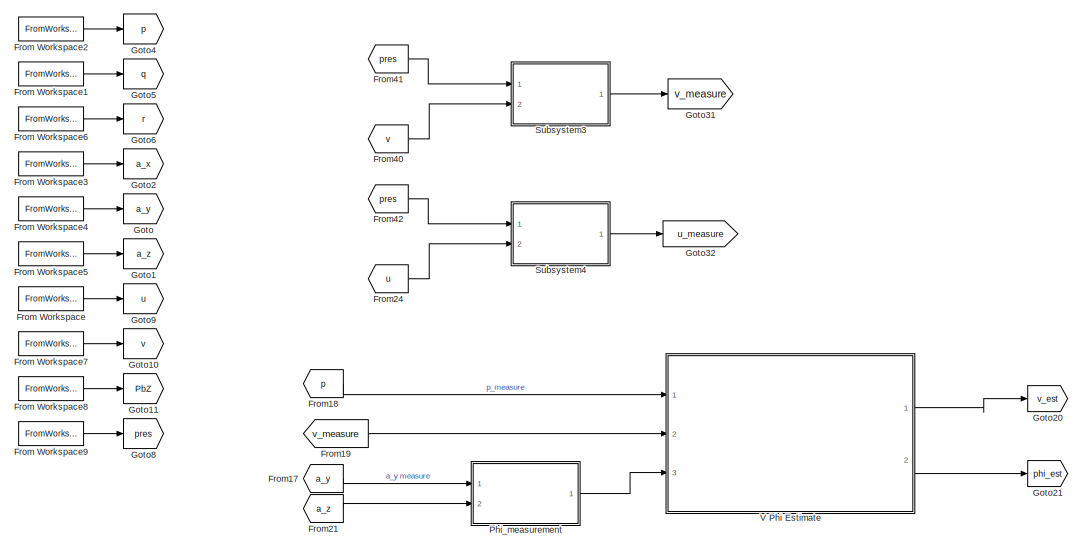
[diagram: root canvas - part 1/5, top left region]
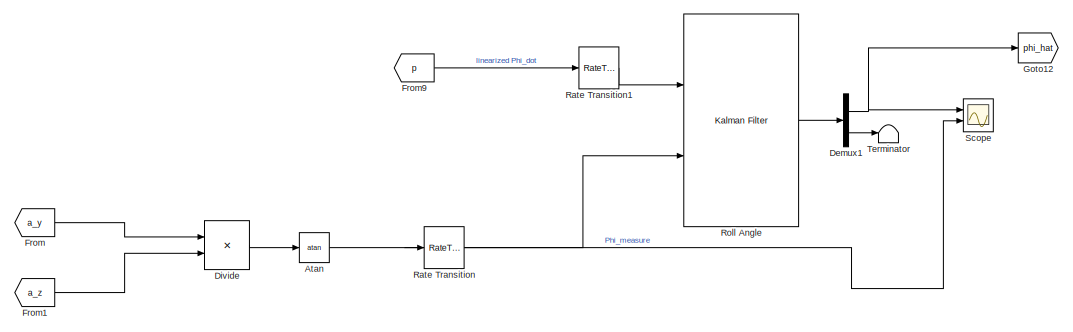
[diagram: root canvas - part 2/5, top right region]
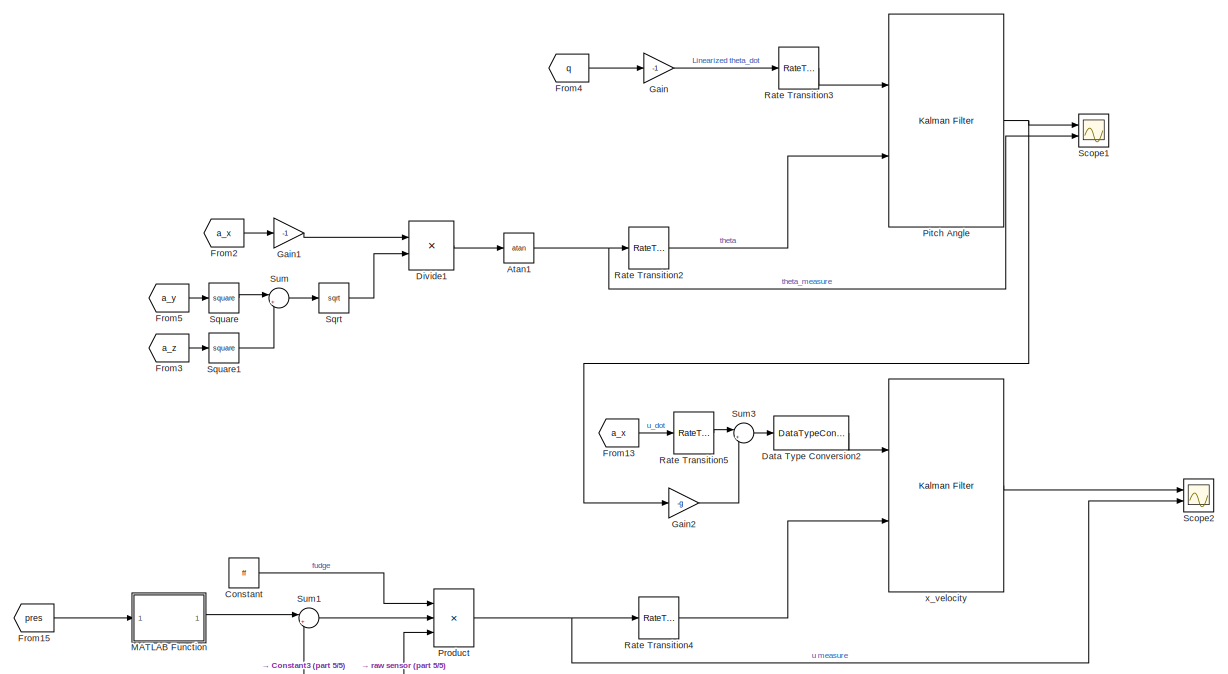
[diagram: root canvas - part 3/5, middle right region]
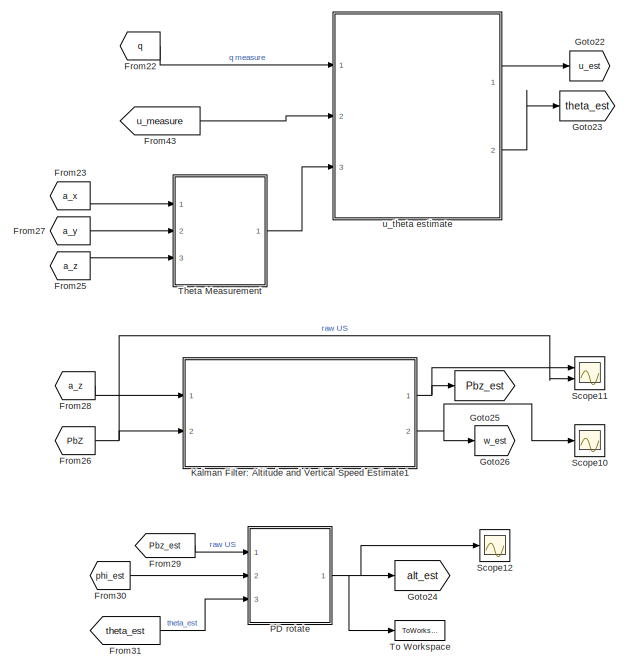
[diagram: root canvas - part 4/5, middle left region]
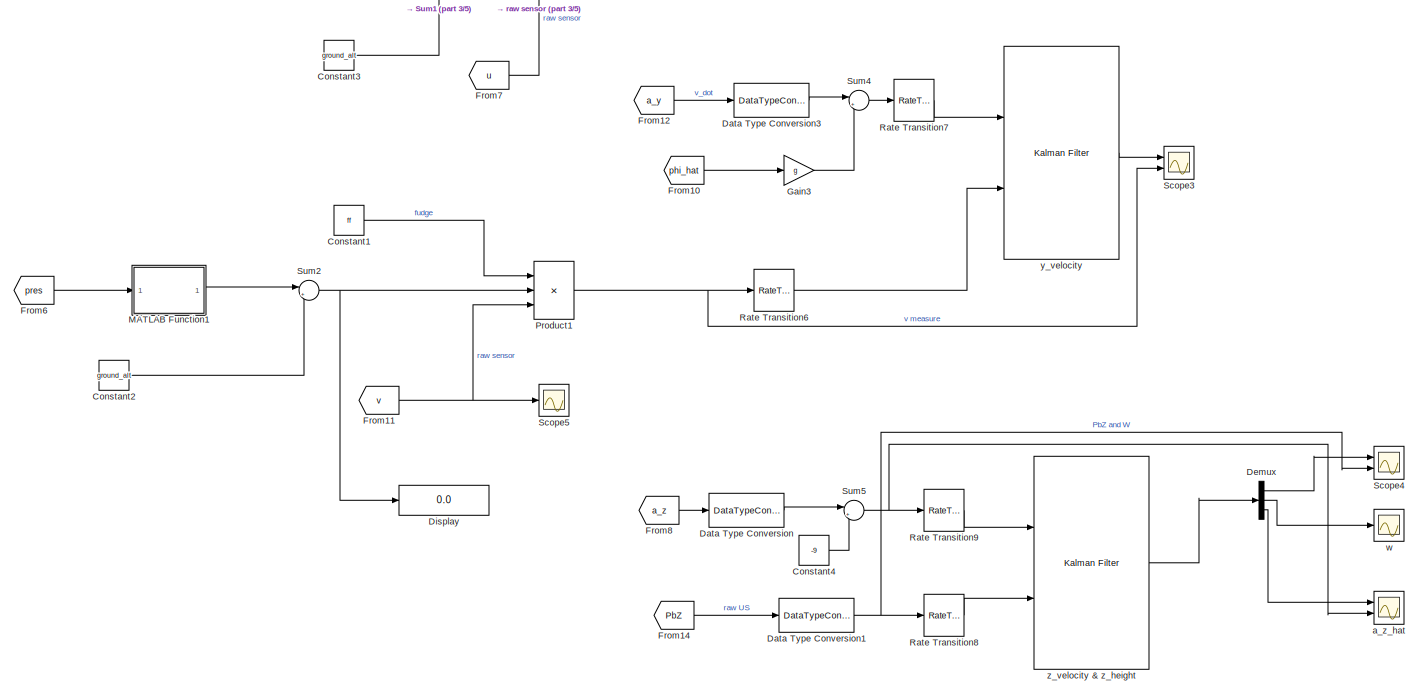
[diagram: root canvas - part 5/5, bottom right region]
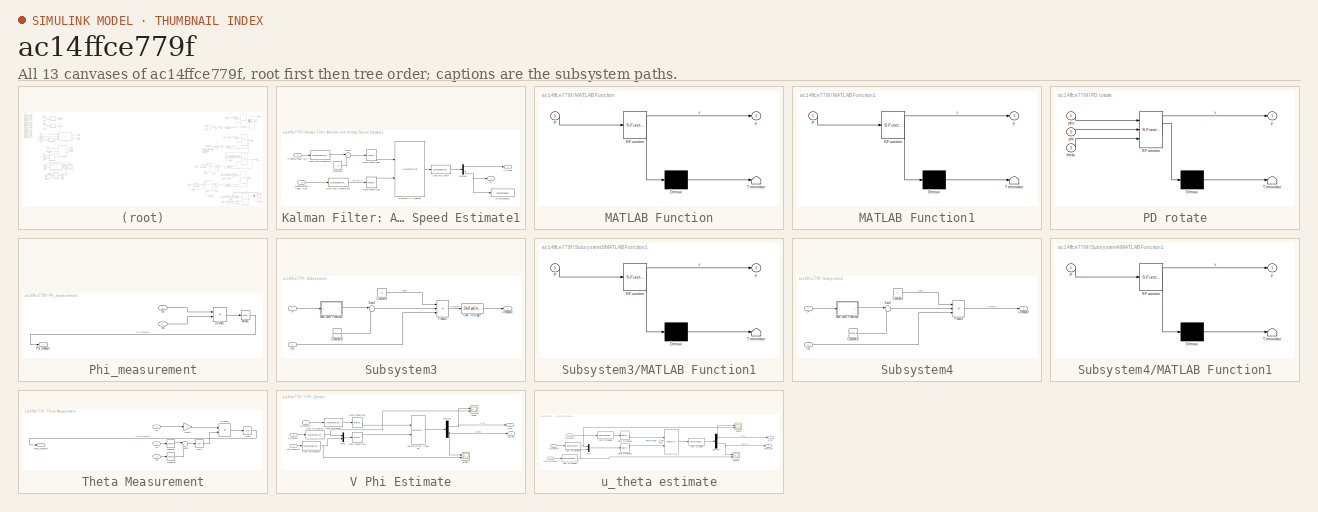
[diagram: thumbnail index - all 13 canvases of the model, root first then tree order]
MODEL slx_ac14ffce779f
KIND model
CONFIG AbsTol = auto
CONFIG EnableMultiTasking = off
CONFIG FixedStep = auto
CONFIG MaxStep = auto
CONFIG MinStep = auto
CONFIG RelTol = 1e-3
CONFIG SampleTimeConstraint = Unconstrained
CONFIG SolverName = VariableStepAuto
CONFIG StartTime = 0.0
CONFIG StopTime = 10.0
BLOCK [Trigonometry] Atan
  Commented = on
  Operator = atan
  Ports = [1, 1]
BLOCK [Trigonometry] Atan1
  Commented = on
  Operator = atan
  Ports = [1, 1]
BLOCK [Constant] Constant
  Commented = on
  Value = ff
BLOCK [Constant] Constant1
  Commented = on
  Value = ff
BLOCK [Constant] Constant2
  Commented = on
  Value = ground_alt
BLOCK [Constant] Constant3
  Commented = on
  Value = ground_alt
BLOCK [Constant] Constant4
  Commented = on
  Value = -9
BLOCK [DataTypeConversion] Data Type Conversion
  Commented = on
  OutDataTypeStr = double
  RndMeth = Floor
  SaturateOnIntegerOverflow = off
BLOCK [DataTypeConversion] Data Type Conversion1
  Commented = on
  OutDataTypeStr = double
  RndMeth = Floor
  SaturateOnIntegerOverflow = off
BLOCK [DataTypeConversion] Data Type Conversion2
  Commented = on
  OutDataTypeStr = double
  RndMeth = Floor
  SaturateOnIntegerOverflow = off
BLOCK [DataTypeConversion] Data Type Conversion3
  Commented = on
  OutDataTypeStr = double
  RndMeth = Floor
  SaturateOnIntegerOverflow = off
BLOCK [Demux] Demux
  Commented = on
  Outputs = 3
  Ports = [1, 3]
BLOCK [Demux] Demux1
  Commented = on
  Outputs = 2
  Ports = [1, 2]
BLOCK [Display] Display
  Commented = on
  Decimation = 1
  Ports = [1]
BLOCK [Product] Divide
  Commented = on
  Inputs = */
  Ports = [2, 1]
BLOCK [Product] Divide1
  Commented = on
  Inputs = */
  Ports = [2, 1]
BLOCK [From] From
  Commented = on
  GotoTag = a_y
BLOCK [FromWorkspace] From Workspace
  VariableName = u
BLOCK [FromWorkspace] From Workspace1
  VariableName = q
BLOCK [FromWorkspace] From Workspace2
  VariableName = p
BLOCK [FromWorkspace] From Workspace3
  VariableName = a_x
BLOCK [FromWorkspace] From Workspace4
  VariableName = a_y
BLOCK [FromWorkspace] From Workspace5
  VariableName = a_z
BLOCK [FromWorkspace] From Workspace6
  VariableName = r
BLOCK [FromWorkspace] From Workspace7
  VariableName = v
BLOCK [FromWorkspace] From Workspace8
  VariableName = PbZ
BLOCK [FromWorkspace] From Workspace9
  VariableName = pressure
BLOCK [From] From1
  Commented = on
  GotoTag = a_z
BLOCK [From] From10
  Commented = on
  GotoTag = phi_hat
BLOCK [From] From11
  Commented = on
  GotoTag = v
BLOCK [From] From12
  Commented = on
  GotoTag = a_y
BLOCK [From] From13
  Commented = on
  GotoTag = a_x
BLOCK [From] From14
  Commented = on
  GotoTag = PbZ
BLOCK [From] From15
  Commented = on
  GotoTag = pres
BLOCK [From] From17
  GotoTag = a_y
BLOCK [From] From18
  GotoTag = p
BLOCK [From] From19
  GotoTag = v_measure
BLOCK [From] From2
  Commented = on
  GotoTag = a_x
BLOCK [From] From21
  GotoTag = a_z
BLOCK [From] From22
  GotoTag = q
BLOCK [From] From23
  GotoTag = a_x
BLOCK [From] From24
  GotoTag = u
BLOCK [From] From25
  GotoTag = a_z
BLOCK [From] From26
  GotoTag = PbZ
BLOCK [From] From27
  GotoTag = a_y
BLOCK [From] From28
  GotoTag = a_z
BLOCK [From] From29
  GotoTag = Pbz_est
  TagVisibility = global
BLOCK [From] From3
  Commented = on
  GotoTag = a_z
BLOCK [From] From30
  GotoTag = phi_est
  TagVisibility = global
BLOCK [From] From31
  GotoTag = theta_est
  TagVisibility = global
BLOCK [From] From4
  Commented = on
  GotoTag = q
BLOCK [From] From40
  GotoTag = v
BLOCK [From] From41
  GotoTag = pres
BLOCK [From] From42
  GotoTag = pres
BLOCK [From] From43
  GotoTag = u_measure
BLOCK [From] From5
  Commented = on
  GotoTag = a_y
BLOCK [From] From6
  Commented = on
  GotoTag = pres
BLOCK [From] From7
  Commented = on
  GotoTag = u
BLOCK [From] From8
  Commented = on
  GotoTag = a_z
BLOCK [From] From9
  Commented = on
  GotoTag = p
BLOCK [Gain] Gain
  Commented = on
  Gain = -1
BLOCK [Gain] Gain1
  Commented = on
  Gain = -1
BLOCK [Gain] Gain2
  Commented = on
  Gain = -g
BLOCK [Gain] Gain3
  Commented = on
  Gain = g
BLOCK [Goto] Goto
  GotoTag = a_y
BLOCK [Goto] Goto1
  GotoTag = a_z
BLOCK [Goto] Goto10
  GotoTag = v
BLOCK [Goto] Goto11
  GotoTag = PbZ
BLOCK [Goto] Goto12
  Commented = on
  GotoTag = phi_hat
BLOCK [Goto] Goto2
  GotoTag = a_x
BLOCK [Goto] Goto20
  GotoTag = v_est
  TagVisibility = global
BLOCK [Goto] Goto21
  GotoTag = phi_est
  TagVisibility = global
BLOCK [Goto] Goto22
  GotoTag = u_est
  TagVisibility = global
BLOCK [Goto] Goto23
  GotoTag = theta_est
  TagVisibility = global
BLOCK [Goto] Goto24
  GotoTag = alt_est
  TagVisibility = global
BLOCK [Goto] Goto25
  GotoTag = Pbz_est
  TagVisibility = global
BLOCK [Goto] Goto26
  GotoTag = w_est
  TagVisibility = global
BLOCK [Goto] Goto31
  GotoTag = v_measure
BLOCK [Goto] Goto32
  GotoTag = u_measure
BLOCK [Goto] Goto4
  GotoTag = p
BLOCK [Goto] Goto5
  GotoTag = q
BLOCK [Goto] Goto6
  GotoTag = r
BLOCK [Goto] Goto8
  GotoTag = pres
BLOCK [Goto] Goto9
  GotoTag = u
BLOCK [SubSystem] Kalman Filter: Altitude and Vertical Speed Estimate1
  Ports = [2, 2]
  RequestExecContextInheritance = off
BLOCK [Outport] Kalman Filter: Altitude and Vertical Speed Estimate1/Altitude
BLOCK [DataTypeConversion] Kalman Filter: Altitude and Vertical Speed Estimate1/Cast To Single
  OutDataTypeStr = single
  RndMeth = Floor
  SaturateOnIntegerOverflow = off
BLOCK [Constant] Kalman Filter: Altitude and Vertical Speed Estimate1/Constant6
  Value = -9
BLOCK [DataTypeConversion] Kalman Filter: Altitude and Vertical Speed Estimate1/Data Type Conversion
  OutDataTypeStr = double
  RndMeth = Floor
  SaturateOnIntegerOverflow = off
BLOCK [DataTypeConversion] Kalman Filter: Altitude and Vertical Speed Estimate1/Data Type Conversion1
  OutDataTypeStr = double
  RndMeth = Floor
  SaturateOnIntegerOverflow = off
BLOCK [Demux] Kalman Filter: Altitude and Vertical Speed Estimate1/Demux1
  Outputs = 2
  Ports = [1, 2]
BLOCK [Inport] Kalman Filter: Altitude and Vertical Speed Estimate1/Measurement Input: PbZ
  Port = 2
BLOCK [Inport] Kalman Filter: Altitude and Vertical Speed Estimate1/Process Input: a_z 
BLOCK [RateTransition] Kalman Filter: Altitude and Vertical Speed Estimate1/Rate Transition8
  OutPortSampleTime = 1/200
BLOCK [RateTransition] Kalman Filter: Altitude and Vertical Speed Estimate1/Rate Transition9
  OutPortSampleTime = 1/200
BLOCK [Sum] Kalman Filter: Altitude and Vertical Speed Estimate1/Sum5
  Inputs = |+-
  Ports = [2, 1]
BLOCK [ToWorkspace] Kalman Filter: Altitude and Vertical Speed Estimate1/To Workspace1
  FixptAsFi = on
  MaxDataPoints = inf
  Ports = [1]
  SampleTime = -1
  SaveFormat = Structure With Time
  VariableName = w_est
BLOCK [Outport] Kalman Filter: Altitude and Vertical Speed Estimate1/W
  Port = 2
BLOCK [Reference] Kalman Filter: Altitude and Vertical Speed Estimate1/z_velocity & z_height  REF=ctrlSharedLib/Kalman Filter
  Ports = [2, 1]
  SourceBlock = ctrlSharedLib/Kalman Filter
  SourceProductBaseCode = CT,ID
  SourceType = ctrlKalmanFilter
BLOCK [SubSystem] MATLAB Function
  Commented = on
  ErrorFcn = Stateflow.Translate.translate
  PermitHierarchicalResolution = ExplicitOnly
  Ports = [1, 1]
  RequestExecContextInheritance = off
  SFBlockType = MATLAB Function
  TreatAsAtomicUnit = on
BLOCK [Demux] MATLAB Function/ Demux 
  Outputs = 1
  Ports = [1, 1]
BLOCK [S-Function] MATLAB Function/ SFunction 
  EnableBusSupport = on
  FunctionName = sf_sfun
  PortCounts = [1 2]
  Ports = [1, 2]
  SFcnIsStateOwnerBlock = off
  SFunctionDeploymentMode = off
  Tag = Stateflow S-Function 2
BLOCK [Terminator] MATLAB Function/ Terminator 
BLOCK [Inport] MATLAB Function/P
BLOCK [Outport] MATLAB Function/y
BLOCK [SubSystem] MATLAB Function1
  Commented = on
  ErrorFcn = Stateflow.Translate.translate
  PermitHierarchicalResolution = ExplicitOnly
  Ports = [1, 1]
  RequestExecContextInheritance = off
  SFBlockType = MATLAB Function
  TreatAsAtomicUnit = on
BLOCK [Demux] MATLAB Function1/ Demux 
  Outputs = 1
  Ports = [1, 1]
BLOCK [S-Function] MATLAB Function1/ SFunction 
  EnableBusSupport = on
  FunctionName = sf_sfun
  PortCounts = [1 2]
  Ports = [1, 2]
  SFcnIsStateOwnerBlock = off
  SFunctionDeploymentMode = off
  Tag = Stateflow S-Function 1
BLOCK [Terminator] MATLAB Function1/ Terminator 
BLOCK [Inport] MATLAB Function1/P
BLOCK [Outport] MATLAB Function1/y
BLOCK [SubSystem] PD rotate
  ErrorFcn = Stateflow.Translate.translate
  PermitHierarchicalResolution = ExplicitOnly
  Ports = [3, 1]
  RequestExecContextInheritance = off
  SFBlockType = MATLAB Function
  TreatAsAtomicUnit = on
BLOCK [Demux] PD rotate/ Demux 
  Outputs = 1
  Ports = [1, 1]
BLOCK [S-Function] PD rotate/ SFunction 
  EnableBusSupport = on
  FunctionName = sf_sfun
  PortCounts = [3 2]
  Ports = [3, 2]
  SFcnIsStateOwnerBlock = off
  SFunctionDeploymentMode = off
  Tag = Stateflow S-Function 3
BLOCK [Terminator] PD rotate/ Terminator 
BLOCK [Inport] PD rotate/pbz
BLOCK [Inport] PD rotate/phi
  Port = 2
BLOCK [Inport] PD rotate/theta
  Port = 3
BLOCK [Outport] PD rotate/y
BLOCK [SubSystem] Phi_measurement
  Ports = [2, 1]
  RequestExecContextInheritance = off
BLOCK [Trigonometry] Phi_measurement/Atan2
  Operator = atan
  Ports = [1, 1]
BLOCK [Product] Phi_measurement/Divide2
  Inputs = */
  Ports = [2, 1]
BLOCK [Inport] Phi_measurement/In1
BLOCK [Inport] Phi_measurement/In2
  Port = 2
BLOCK [Outport] Phi_measurement/Phi_measure
BLOCK [Reference] Pitch Angle  REF=ctrlSharedLib/Kalman Filter
  Commented = on
  Ports = [2, 1]
  SourceBlock = ctrlSharedLib/Kalman Filter
  SourceProductBaseCode = CT,ID
  SourceType = ctrlKalmanFilter
BLOCK [Product] Product
  Commented = on
  Inputs = 3
  Ports = [3, 1]
BLOCK [Product] Product1
  Commented = on
  Inputs = 3
  Ports = [3, 1]
BLOCK [RateTransition] Rate Transition
  Commented = on
  OutPortSampleTime = 1/200
BLOCK [RateTransition] Rate Transition1
  Commented = on
  OutPortSampleTime = 1/200
BLOCK [RateTransition] Rate Transition2
  Commented = on
  OutPortSampleTime = 1/200
BLOCK [RateTransition] Rate Transition3
  Commented = on
  OutPortSampleTime = 1/200
BLOCK [RateTransition] Rate Transition4
  Commented = on
  OutPortSampleTime = 1/200
BLOCK [RateTransition] Rate Transition5
  Commented = on
  OutPortSampleTime = 1/200
BLOCK [RateTransition] Rate Transition6
  Commented = on
  OutPortSampleTime = 1/200
BLOCK [RateTransition] Rate Transition7
  Commented = on
  OutPortSampleTime = 1/200
BLOCK [RateTransition] Rate Transition8
  Commented = on
  OutPortSampleTime = 1/200
BLOCK [RateTransition] Rate Transition9
  Commented = on
  OutPortSampleTime = 1/200
BLOCK [Reference] Roll Angle  REF=ctrlSharedLib/Kalman Filter
  Commented = on
  Ports = [2, 1]
  SourceBlock = ctrlSharedLib/Kalman Filter
  SourceProductBaseCode = CT,ID
  SourceType = ctrlKalmanFilter
BLOCK [Scope] Scope
  Commented = on
  Floating = off
  NumInputPorts = 2
  Ports = [2]
  ScopeSpecificationString = Simulink.scopes.TimeScopeBlockCfg('CurrentConfiguration', extmgr.ConfigurationSet(extmgr.Configuration('Core','General UI',true),extmgr.Configuration('Core','Source UI',true),extmgr.Configuration('Sources','WiredSimulink',true),extmgr.Configuration('Visuals','Time Domain',true,'SerializedDisplays',{struct('MinYLimReal','-0.88129','MaxYLimReal','1.18508','YLabelReal','','MinYLimMag','0.00000','MaxY...<+1433ch>
BLOCK [Scope] Scope1
  Commented = on
  Floating = off
  NumInputPorts = 2
  Ports = [2]
  ScopeSpecificationString = Simulink.scopes.TimeScopeBlockCfg('CurrentConfiguration', extmgr.ConfigurationSet(extmgr.Configuration('Core','General UI',true),extmgr.Configuration('Core','Source UI',true),extmgr.Configuration('Sources','WiredSimulink',true,'DataLoggingVariableName','ScopeData1'),extmgr.Configuration('Visuals','Time Domain',true,'SerializedDisplays',{struct('MinYLimReal','-0.82118','MaxYLimReal','1.01964','YLab...<+1506ch>
BLOCK [Scope] Scope10
  Floating = off
  NumInputPorts = 1
  Ports = [1]
  ScopeSpecificationString = Simulink.scopes.TimeScopeBlockCfg('CurrentConfiguration', extmgr.ConfigurationSet(extmgr.Configuration('Core','General UI',true),extmgr.Configuration('Core','Source UI',true),extmgr.Configuration('Sources','WiredSimulink',true,'DataLoggingVariableName','ScopeData5'),extmgr.Configuration('Visuals','Time Domain',true,'SerializedDisplays',{struct('MinYLimReal','-0.23997','MaxYLimReal','0.71746','YLab...<+1440ch>
BLOCK [Scope] Scope11
  Floating = off
  NumInputPorts = 2
  Ports = [2]
  ScopeSpecificationString = Simulink.scopes.TimeScopeBlockCfg('CurrentConfiguration', extmgr.ConfigurationSet(extmgr.Configuration('Core','General UI',true),extmgr.Configuration('Core','Source UI',true),extmgr.Configuration('Sources','WiredSimulink',true,'DataLoggingVariableName','ScopeData6'),extmgr.Configuration('Visuals','Time Domain',true,'SerializedDisplays',{struct('MinYLimReal','0.08693','MaxYLimReal','0.86697','YLabe...<+1420ch>
BLOCK [Scope] Scope12
  Floating = off
  NumInputPorts = 1
  Ports = [1]
  ScopeSpecificationString = Simulink.scopes.TimeScopeBlockCfg('CurrentConfiguration', extmgr.ConfigurationSet(extmgr.Configuration('Core','General UI',true),extmgr.Configuration('Core','Source UI',true),extmgr.Configuration('Sources','WiredSimulink',true,'DataLoggingVariableName','ScopeData7'),extmgr.Configuration('Visuals','Time Domain',true,'SerializedDisplays',{struct('MinYLimReal','-0.04077','MaxYLimReal','0.01858','YLab...<+1368ch>
BLOCK [Scope] Scope2
  Commented = on
  Floating = off
  NumInputPorts = 2
  Ports = [2]
  ScopeSpecificationString = Simulink.scopes.TimeScopeBlockCfg('CurrentConfiguration', extmgr.ConfigurationSet(extmgr.Configuration('Core','General UI',true),extmgr.Configuration('Core','Source UI',true),extmgr.Configuration('Sources','WiredSimulink',true,'DataLoggingVariableName','ScopeData2'),extmgr.Configuration('Visuals','Time Domain',true,'SerializedDisplays',{struct('MinYLimReal','-78.97711','MaxYLimReal','99.67075','YL...<+1500ch>
BLOCK [Scope] Scope3
  Commented = on
  Floating = off
  NumInputPorts = 2
  Ports = [2]
  ScopeSpecificationString = Simulink.scopes.TimeScopeBlockCfg('CurrentConfiguration', extmgr.ConfigurationSet(extmgr.Configuration('Core','General UI',true),extmgr.Configuration('Core','Source UI',true),extmgr.Configuration('Sources','WiredSimulink',true,'DataLoggingVariableName','ScopeData3'),extmgr.Configuration('Visuals','Time Domain',true,'SerializedDisplays',{struct('MinYLimReal','-122.02139','MaxYLimReal','115.8093','Y...<+1506ch>
BLOCK [Scope] Scope4
  Commented = on
  Floating = off
  NumInputPorts = 2
  Ports = [2]
  ScopeSpecificationString = Simulink.scopes.TimeScopeBlockCfg('CurrentConfiguration', extmgr.ConfigurationSet(extmgr.Configuration('Core','General UI',true),extmgr.Configuration('Core','Source UI',true),extmgr.Configuration('Sources','WiredSimulink',true,'DataLoggingVariableName','ScopeData2'),extmgr.Configuration('Visuals','Time Domain',true,'SerializedDisplays',{struct('MinYLimReal','-0.02857','MaxYLimReal','1.11252','YLab...<+1473ch>
BLOCK [Scope] Scope5
  Commented = on
  Floating = off
  NumInputPorts = 1
  Ports = [1]
  ScopeSpecificationString = Simulink.scopes.TimeScopeBlockCfg('CurrentConfiguration', extmgr.ConfigurationSet(extmgr.Configuration('Core','General UI',true),extmgr.Configuration('Core','Source UI',true),extmgr.Configuration('Sources','WiredSimulink',true,'DataLoggingVariableName','ScopeData1'),extmgr.Configuration('Visuals','Time Domain',true,'SerializedDisplays',{struct('MinYLimReal','-0.40564','MaxYLimReal','0.42316','YLab...<+1398ch>
BLOCK [Sqrt] Sqrt
  Commented = on
BLOCK [Math] Square
  Commented = on
  Operator = square
  Ports = [1, 1]
BLOCK [Math] Square1
  Commented = on
  Operator = square
  Ports = [1, 1]
BLOCK [SubSystem] Subsystem3
  Ports = [2, 1]
  RequestExecContextInheritance = off
BLOCK [DataTypeConversion] Subsystem3/Cast To Single
  OutDataTypeStr = single
  RndMeth = Floor
  SaturateOnIntegerOverflow = off
BLOCK [Constant] Subsystem3/Constant10
  Value = ground_alt
BLOCK [Constant] Subsystem3/Constant9
  Value = ff
BLOCK [Inport] Subsystem3/In2
  Port = 2
BLOCK [SubSystem] Subsystem3/MATLAB Function1
  ErrorFcn = Stateflow.Translate.translate
  PermitHierarchicalResolution = ExplicitOnly
  Ports = [1, 1]
  RequestExecContextInheritance = off
  SFBlockType = MATLAB Function
  TreatAsAtomicUnit = on
BLOCK [Demux] Subsystem3/MATLAB Function1/ Demux 
  Outputs = 1
  Ports = [1, 1]
BLOCK [S-Function] Subsystem3/MATLAB Function1/ SFunction 
  EnableBusSupport = on
  FunctionName = sf_sfun
  PortCounts = [1 2]
  Ports = [1, 2]
  SFcnIsStateOwnerBlock = off
  SFunctionDeploymentMode = off
  Tag = Stateflow S-Function 4
BLOCK [Terminator] Subsystem3/MATLAB Function1/ Terminator 
BLOCK [Inport] Subsystem3/MATLAB Function1/P
BLOCK [Outport] Subsystem3/MATLAB Function1/y
BLOCK [Inport] Subsystem3/P
BLOCK [Product] Subsystem3/Product1
  Inputs = 3
  Ports = [3, 1]
BLOCK [Sum] Subsystem3/Sum2
  Inputs = |+-
  Ports = [2, 1]
BLOCK [Outport] Subsystem3/v measure
BLOCK [SubSystem] Subsystem4
  Ports = [2, 1]
  RequestExecContextInheritance = off
BLOCK [Constant] Subsystem4/Constant10
  Value = ground_alt
BLOCK [Constant] Subsystem4/Constant9
  Value = ff
BLOCK [Inport] Subsystem4/In2
  Port = 2
BLOCK [SubSystem] Subsystem4/MATLAB Function1
  ErrorFcn = Stateflow.Translate.translate
  PermitHierarchicalResolution = ExplicitOnly
  Ports = [1, 1]
  RequestExecContextInheritance = off
  SFBlockType = MATLAB Function
  TreatAsAtomicUnit = on
BLOCK [Demux] Subsystem4/MATLAB Function1/ Demux 
  Outputs = 1
  Ports = [1, 1]
BLOCK [S-Function] Subsystem4/MATLAB Function1/ SFunction 
  EnableBusSupport = on
  FunctionName = sf_sfun
  PortCounts = [1 2]
  Ports = [1, 2]
  SFcnIsStateOwnerBlock = off
  SFunctionDeploymentMode = off
  Tag = Stateflow S-Function 5
BLOCK [Terminator] Subsystem4/MATLAB Function1/ Terminator 
BLOCK [Inport] Subsystem4/MATLAB Function1/P
BLOCK [Outport] Subsystem4/MATLAB Function1/y
BLOCK [Inport] Subsystem4/P
BLOCK [Product] Subsystem4/Product1
  Inputs = 3
  Ports = [3, 1]
BLOCK [Sum] Subsystem4/Sum2
  Inputs = |+-
  Ports = [2, 1]
BLOCK [Outport] Subsystem4/u measure
BLOCK [Sum] Sum
  Commented = on
  Inputs = |++
  Ports = [2, 1]
BLOCK [Sum] Sum1
  Commented = on
  Inputs = |+-
  Ports = [2, 1]
BLOCK [Sum] Sum2
  Commented = on
  Inputs = |+-
  Ports = [2, 1]
BLOCK [Sum] Sum3
  Commented = on
  Inputs = |++
  Ports = [2, 1]
BLOCK [Sum] Sum4
  Commented = on
  Inputs = |++
  Ports = [2, 1]
BLOCK [Sum] Sum5
  Commented = on
  Inputs = |+-
  Ports = [2, 1]
BLOCK [Terminator] Terminator
  Commented = on
BLOCK [SubSystem] Theta Measurement
  Ports = [3, 1]
  RequestExecContextInheritance = off
BLOCK [Trigonometry] Theta Measurement/Atan3
  Operator = atan
  Ports = [1, 1]
BLOCK [Product] Theta Measurement/Divide3
  Inputs = */
  Ports = [2, 1]
BLOCK [Gain] Theta Measurement/Gain4
  Gain = -1
BLOCK [Inport] Theta Measurement/In1
BLOCK [Inport] Theta Measurement/In2
  Port = 2
BLOCK [Inport] Theta Measurement/In3
  Port = 3
BLOCK [Sqrt] Theta Measurement/Sqrt1
BLOCK [Math] Theta Measurement/Square2
  Operator = square
  Ports = [1, 1]
BLOCK [Math] Theta Measurement/Square3
  Operator = square
  Ports = [1, 1]
BLOCK [Sum] Theta Measurement/Sum6
  Inputs = |++
  Ports = [2, 1]
BLOCK [Outport] Theta Measurement/theta_measure
BLOCK [ToWorkspace] To Workspace
  FixptAsFi = on
  MaxDataPoints = inf
  Ports = [1]
  SampleTime = -1
  SaveFormat = Structure With Time
  VariableName = alt_est
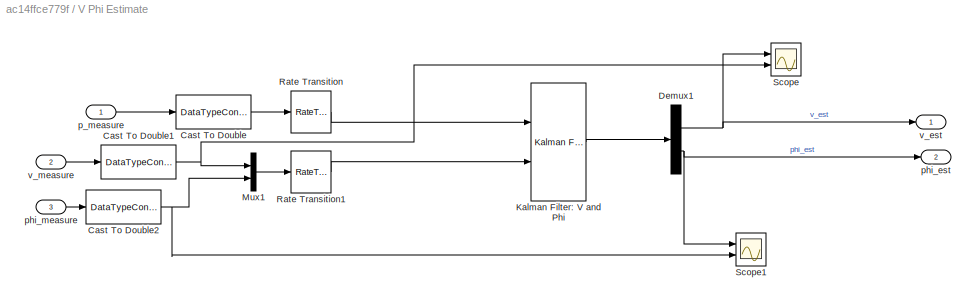
BLOCK [SubSystem] V Phi Estimate
  Ports = [3, 2]
  RequestExecContextInheritance = off
BLOCK [DataTypeConversion] V Phi Estimate/Cast To Double
  OutDataTypeStr = double
  RndMeth = Floor
  SaturateOnIntegerOverflow = off
BLOCK [DataTypeConversion] V Phi Estimate/Cast To Double1
  OutDataTypeStr = double
  RndMeth = Floor
  SaturateOnIntegerOverflow = off
BLOCK [DataTypeConversion] V Phi Estimate/Cast To Double2
  OutDataTypeStr = double
  RndMeth = Floor
  SaturateOnIntegerOverflow = off
BLOCK [Demux] V Phi Estimate/Demux1
  Outputs = 2
  Ports = [1, 2]
BLOCK [Reference] V Phi Estimate/Kalman Filter: V and Phi  REF=ctrlSharedLib/Kalman Filter
  Ports = [2, 1]
  SourceBlock = ctrlSharedLib/Kalman Filter
  SourceProductBaseCode = CT,ID
  SourceType = ctrlKalmanFilter
BLOCK [Mux] V Phi Estimate/Mux1
  DisplayOption = bar
  Inputs = 2
  Ports = [2, 1]
BLOCK [RateTransition] V Phi Estimate/Rate Transition
  OutPortSampleTime = 1/200
BLOCK [RateTransition] V Phi Estimate/Rate Transition1
  OutPortSampleTime = 1/200
BLOCK [Scope] V Phi Estimate/Scope
  Floating = off
  NumInputPorts = 2
  Ports = [2]
  ScopeSpecificationString = Simulink.scopes.TimeScopeBlockCfg('CurrentConfiguration', extmgr.ConfigurationSet(extmgr.Configuration('Core','General UI',true),extmgr.Configuration('Core','Source UI',true),extmgr.Configuration('Sources','WiredSimulink',true,'DataLoggingVariableName','ScopeData1'),extmgr.Configuration('Visuals','Time Domain',true,'SerializedDisplays',{struct('MinYLimReal','-0.21192','MaxYLimReal','0.19018','YLab...<+1403ch>
BLOCK [Scope] V Phi Estimate/Scope1
  Floating = off
  NumInputPorts = 2
  Ports = [2]
  ScopeSpecificationString = Simulink.scopes.TimeScopeBlockCfg('CurrentConfiguration', extmgr.ConfigurationSet(extmgr.Configuration('Core','General UI',true),extmgr.Configuration('Core','Source UI',true),extmgr.Configuration('Sources','WiredSimulink',true,'DataLoggingVariableName','ScopeData2'),extmgr.Configuration('Visuals','Time Domain',true,'SerializedDisplays',{struct('MinYLimReal','-0.09021','MaxYLimReal','0.1464','YLabe...<+1448ch>
BLOCK [Inport] V Phi Estimate/p_measure
BLOCK [Outport] V Phi Estimate/phi_est
  Port = 2
BLOCK [Inport] V Phi Estimate/phi_measure
  Port = 3
BLOCK [Outport] V Phi Estimate/v_est
BLOCK [Inport] V Phi Estimate/v_measure
  Port = 2
BLOCK [Scope] a_z_hat
  Commented = on
  Floating = off
  NumInputPorts = 2
  Ports = [2]
  ScopeSpecificationString = Simulink.scopes.TimeScopeBlockCfg('CurrentConfiguration', extmgr.ConfigurationSet(extmgr.Configuration('Core','General UI',true),extmgr.Configuration('Core','Source UI',true),extmgr.Configuration('Sources','WiredSimulink',true,'DataLoggingVariableName','ScopeData1'),extmgr.Configuration('Visuals','Time Domain',true,'SerializedDisplays',{struct('MinYLimReal','-3.47399','MaxYLimReal','4.62763','YLab...<+1400ch>
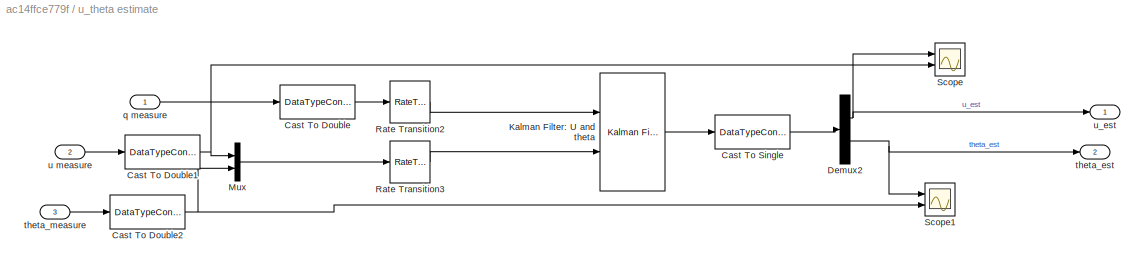
BLOCK [SubSystem] u_theta estimate
  Ports = [3, 2]
  RequestExecContextInheritance = off
BLOCK [DataTypeConversion] u_theta estimate/Cast To Double
  OutDataTypeStr = double
  RndMeth = Floor
  SaturateOnIntegerOverflow = off
BLOCK [DataTypeConversion] u_theta estimate/Cast To Double1
  OutDataTypeStr = double
  RndMeth = Floor
  SaturateOnIntegerOverflow = off
BLOCK [DataTypeConversion] u_theta estimate/Cast To Double2
  OutDataTypeStr = double
  RndMeth = Floor
  SaturateOnIntegerOverflow = off
BLOCK [DataTypeConversion] u_theta estimate/Cast To Single
  OutDataTypeStr = single
  RndMeth = Floor
  SaturateOnIntegerOverflow = off
BLOCK [Demux] u_theta estimate/Demux2
  Outputs = 2
  Ports = [1, 2]
BLOCK [Reference] u_theta estimate/Kalman Filter: U and theta  REF=ctrlSharedLib/Kalman Filter
  Ports = [2, 1]
  SourceBlock = ctrlSharedLib/Kalman Filter
  SourceProductBaseCode = CT,ID
  SourceType = ctrlKalmanFilter
BLOCK [Mux] u_theta estimate/Mux
  DisplayOption = bar
  Inputs = 2
  Ports = [2, 1]
BLOCK [RateTransition] u_theta estimate/Rate Transition2
  OutPortSampleTime = 1/200
BLOCK [RateTransition] u_theta estimate/Rate Transition3
  OutPortSampleTime = 1/200
BLOCK [Scope] u_theta estimate/Scope
  Floating = off
  NumInputPorts = 2
  Ports = [2]
  ScopeSpecificationString = Simulink.scopes.TimeScopeBlockCfg('CurrentConfiguration', extmgr.ConfigurationSet(extmgr.Configuration('Core','General UI',true),extmgr.Configuration('Core','Source UI',true),extmgr.Configuration('Sources','WiredSimulink',true,'DataLoggingVariableName','ScopeData3'),extmgr.Configuration('Visuals','Time Domain',true,'SerializedDisplays',{struct('MinYLimReal','-4.83483','MaxYLimReal','0.72177','YLab...<+1409ch>
BLOCK [Scope] u_theta estimate/Scope1
  Floating = off
  NumInputPorts = 2
  Ports = [2]
  ScopeSpecificationString = Simulink.scopes.TimeScopeBlockCfg('CurrentConfiguration', extmgr.ConfigurationSet(extmgr.Configuration('Core','General UI',true),extmgr.Configuration('Core','Source UI',true),extmgr.Configuration('Sources','WiredSimulink',true,'DataLoggingVariableName','ScopeData4'),extmgr.Configuration('Visuals','Time Domain',true,'SerializedDisplays',{struct('MinYLimReal','-0.03346','MaxYLimReal','0.07095','YLab...<+1430ch>
BLOCK [Inport] u_theta estimate/q measure
BLOCK [Outport] u_theta estimate/theta_est
  Port = 2
BLOCK [Inport] u_theta estimate/theta_measure
  Port = 3
BLOCK [Inport] u_theta estimate/u measure
  Port = 2
BLOCK [Outport] u_theta estimate/u_est
BLOCK [Scope] w
  Commented = on
  Floating = off
  NumInputPorts = 1
  Ports = [1]
  ScopeSpecificationString = Simulink.scopes.TimeScopeBlockCfg('CurrentConfiguration', extmgr.ConfigurationSet(extmgr.Configuration('Core','General UI',true),extmgr.Configuration('Core','Source UI',true),extmgr.Configuration('Sources','WiredSimulink',true,'DataLoggingVariableName','ScopeData1'),extmgr.Configuration('Visuals','Time Domain',true,'SerializedDisplays',{struct('MinYLimReal','-0.51826','MaxYLimReal','0.93623','YLab...<+1395ch>
BLOCK [Reference] x_velocity  REF=ctrlSharedLib/Kalman Filter
  Commented = on
  Ports = [2, 1]
  SourceBlock = ctrlSharedLib/Kalman Filter
  SourceProductBaseCode = CT,ID
  SourceType = ctrlKalmanFilter
BLOCK [Reference] y_velocity  REF=ctrlSharedLib/Kalman Filter
  Commented = on
  Ports = [2, 1]
  SourceBlock = ctrlSharedLib/Kalman Filter
  SourceProductBaseCode = CT,ID
  SourceType = ctrlKalmanFilter
BLOCK [Reference] z_velocity & z_height  REF=ctrlSharedLib/Kalman Filter
  Commented = on
  Ports = [2, 1]
  SourceBlock = ctrlSharedLib/Kalman Filter
  SourceProductBaseCode = CT,ID
  SourceType = ctrlKalmanFilter
NET Atan1:1 -> Rate Transition2:1, Scope1:2
NET Atan:1 -> Rate Transition:1, Scope:2
LINE Constant1:1 -> Product1:1
LINE Constant2:1 -> Sum2:2
LINE Constant3:1 -> Sum1:2
LINE Constant4:1 -> Sum5:2
LINE Constant:1 -> Product:1
NET Data Type Conversion1:1 -> Rate Transition8:1, Scope4:2
LINE Data Type Conversion2:1 -> x_velocity:1
LINE Data Type Conversion3:1 -> Sum4:1
LINE Data Type Conversion:1 -> Sum5:1
NET Demux1:1 -> Goto12:1, Scope:1
LINE Demux1:2 -> Terminator:1
LINE Demux:1 -> Scope4:1
LINE Demux:2 -> w:1
LINE Demux:3 -> a_z_hat:1
LINE Divide1:1 -> Atan1:1
LINE Divide:1 -> Atan:1
LINE From Workspace1:1 -> Goto5:1
LINE From Workspace2:1 -> Goto4:1
LINE From Workspace3:1 -> Goto2:1
LINE From Workspace4:1 -> Goto:1
LINE From Workspace5:1 -> Goto1:1
LINE From Workspace6:1 -> Goto6:1
LINE From Workspace7:1 -> Goto10:1
LINE From Workspace8:1 -> Goto11:1
LINE From Workspace9:1 -> Goto8:1
LINE From Workspace:1 -> Goto9:1
LINE From10:1 -> Gain3:1
NET From11:1 -> Product1:3, Scope5:1
LINE From12:1 -> Data Type Conversion3:1
LINE From13:1 -> Rate Transition5:1
LINE From14:1 -> Data Type Conversion1:1
LINE From15:1 -> MATLAB Function:1
LINE From17:1 -> Phi_measurement:1
LINE From18:1 -> V Phi Estimate:1
LINE From19:1 -> V Phi Estimate:2
LINE From1:1 -> Divide:2
LINE From21:1 -> Phi_measurement:2
LINE From22:1 -> u_theta estimate:1
LINE From23:1 -> Theta Measurement:1
LINE From24:1 -> Subsystem4:2
LINE From25:1 -> Theta Measurement:3
NET From26:1 -> Kalman Filter: Altitude and Vertical Speed Estimate1:2, Scope11:2
LINE From27:1 -> Theta Measurement:2
LINE From28:1 -> Kalman Filter: Altitude and Vertical Speed Estimate1:1
LINE From29:1 -> PD rotate:1
LINE From2:1 -> Gain1:1
LINE From30:1 -> PD rotate:2
LINE From31:1 -> PD rotate:3
LINE From3:1 -> Square1:1
LINE From40:1 -> Subsystem3:2
LINE From41:1 -> Subsystem3:1
LINE From42:1 -> Subsystem4:1
LINE From43:1 -> u_theta estimate:2
LINE From4:1 -> Gain:1
LINE From5:1 -> Square:1
LINE From6:1 -> MATLAB Function1:1
LINE From7:1 -> Product:3
LINE From8:1 -> Data Type Conversion:1
LINE From9:1 -> Rate Transition1:1
LINE From:1 -> Divide:1
LINE Gain1:1 -> Divide1:1
LINE Gain2:1 -> Sum3:2
LINE Gain3:1 -> Sum4:2
LINE Gain:1 -> Rate Transition3:1
LINE Kalman Filter: Altitude and Vertical Speed Estimate1/Cast To Single:1 -> Kalman Filter: Altitude and Vertical Speed Estimate1/Demux1:1
LINE Kalman Filter: Altitude and Vertical Speed Estimate1/Constant6:1 -> Kalman Filter: Altitude and Vertical Speed Estimate1/Sum5:2
LINE Kalman Filter: Altitude and Vertical Speed Estimate1/Data Type Conversion1:1 -> Kalman Filter: Altitude and Vertical Speed Estimate1/Rate Transition8:1
LINE Kalman Filter: Altitude and Vertical Speed Estimate1/Data Type Conversion:1 -> Kalman Filter: Altitude and Vertical Speed Estimate1/Sum5:1
LINE Kalman Filter: Altitude and Vertical Speed Estimate1/Demux1:1 -> Kalman Filter: Altitude and Vertical Speed Estimate1/Altitude:1
NET Kalman Filter: Altitude and Vertical Speed Estimate1/Demux1:2 -> Kalman Filter: Altitude and Vertical Speed Estimate1/To Workspace1:1, Kalman Filter: Altitude and Vertical Speed Estimate1/W:1
LINE Kalman Filter: Altitude and Vertical Speed Estimate1/Measurement Input: PbZ:1 -> Kalman Filter: Altitude and Vertical Speed Estimate1/Data Type Conversion1:1
LINE Kalman Filter: Altitude and Vertical Speed Estimate1/Process Input: a_z :1 -> Kalman Filter: Altitude and Vertical Speed Estimate1/Data Type Conversion:1
LINE Kalman Filter: Altitude and Vertical Speed Estimate1/Rate Transition8:1 -> Kalman Filter: Altitude and Vertical Speed Estimate1/z_velocity & z_height:2
LINE Kalman Filter: Altitude and Vertical Speed Estimate1/Rate Transition9:1 -> Kalman Filter: Altitude and Vertical Speed Estimate1/z_velocity & z_height:1
LINE Kalman Filter: Altitude and Vertical Speed Estimate1/Sum5:1 -> Kalman Filter: Altitude and Vertical Speed Estimate1/Rate Transition9:1
LINE Kalman Filter: Altitude and Vertical Speed Estimate1/z_velocity & z_height:1 -> Kalman Filter: Altitude and Vertical Speed Estimate1/Cast To Single:1
NET Kalman Filter: Altitude and Vertical Speed Estimate1:1 -> Goto25:1, Scope11:1
NET Kalman Filter: Altitude and Vertical Speed Estimate1:2 -> Goto26:1, Scope10:1
LINE MATLAB Function1:1 -> Sum2:1
LINE MATLAB Function:1 -> Sum1:1
NET PD rotate:1 -> Goto24:1, Scope12:1, To Workspace:1
LINE Phi_measurement/Atan2:1 -> Phi_measurement/Phi_measure:1
LINE Phi_measurement/Divide2:1 -> Phi_measurement/Atan2:1
LINE Phi_measurement/In1:1 -> Phi_measurement/Divide2:1
LINE Phi_measurement/In2:1 -> Phi_measurement/Divide2:2
LINE Phi_measurement:1 -> V Phi Estimate:3
NET Pitch Angle:1 -> Gain2:1, Scope1:1
NET Product1:1 -> Rate Transition6:1, Scope3:2
NET Product:1 -> Rate Transition4:1, Scope2:2
LINE Rate Transition1:1 -> Roll Angle:1
LINE Rate Transition2:1 -> Pitch Angle:2
LINE Rate Transition3:1 -> Pitch Angle:1
LINE Rate Transition4:1 -> x_velocity:2
LINE Rate Transition5:1 -> Sum3:1
LINE Rate Transition6:1 -> y_velocity:2
LINE Rate Transition7:1 -> y_velocity:1
LINE Rate Transition8:1 -> z_velocity & z_height:2
LINE Rate Transition9:1 -> z_velocity & z_height:1
LINE Rate Transition:1 -> Roll Angle:2
LINE Roll Angle:1 -> Demux1:1
LINE Sqrt:1 -> Divide1:2
LINE Square1:1 -> Sum:2
LINE Square:1 -> Sum:1
LINE Subsystem3/Cast To Single:1 -> Subsystem3/v measure:1
LINE Subsystem3/Constant10:1 -> Subsystem3/Sum2:2
LINE Subsystem3/Constant9:1 -> Subsystem3/Product1:1
LINE Subsystem3/In2:1 -> Subsystem3/Product1:3
LINE Subsystem3/MATLAB Function1:1 -> Subsystem3/Sum2:1
LINE Subsystem3/P:1 -> Subsystem3/MATLAB Function1:1
LINE Subsystem3/Product1:1 -> Subsystem3/Cast To Single:1
LINE Subsystem3/Sum2:1 -> Subsystem3/Product1:2
LINE Subsystem3:1 -> Goto31:1
LINE Subsystem4/Constant10:1 -> Subsystem4/Sum2:2
LINE Subsystem4/Constant9:1 -> Subsystem4/Product1:1
LINE Subsystem4/In2:1 -> Subsystem4/Product1:3
LINE Subsystem4/MATLAB Function1:1 -> Subsystem4/Sum2:1
LINE Subsystem4/P:1 -> Subsystem4/MATLAB Function1:1
LINE Subsystem4/Product1:1 -> Subsystem4/u measure:1
LINE Subsystem4/Sum2:1 -> Subsystem4/Product1:2
LINE Subsystem4:1 -> Goto32:1
LINE Sum1:1 -> Product:2
NET Sum2:1 -> Display:1, Product1:2
LINE Sum3:1 -> Data Type Conversion2:1
LINE Sum4:1 -> Rate Transition7:1
NET Sum5:1 -> Rate Transition9:1, a_z_hat:2
LINE Sum:1 -> Sqrt:1
LINE Theta Measurement/Atan3:1 -> Theta Measurement/theta_measure:1
LINE Theta Measurement/Divide3:1 -> Theta Measurement/Atan3:1
LINE Theta Measurement/Gain4:1 -> Theta Measurement/Divide3:1
LINE Theta Measurement/In1:1 -> Theta Measurement/Gain4:1
LINE Theta Measurement/In2:1 -> Theta Measurement/Square2:1
LINE Theta Measurement/In3:1 -> Theta Measurement/Square3:1
LINE Theta Measurement/Sqrt1:1 -> Theta Measurement/Divide3:2
LINE Theta Measurement/Square2:1 -> Theta Measurement/Sum6:1
LINE Theta Measurement/Square3:1 -> Theta Measurement/Sum6:2
LINE Theta Measurement/Sum6:1 -> Theta Measurement/Sqrt1:1
LINE Theta Measurement:1 -> u_theta estimate:3
NET V Phi Estimate/Cast To Double1:1 -> V Phi Estimate/Mux1:1, V Phi Estimate/Scope:2
NET V Phi Estimate/Cast To Double2:1 -> V Phi Estimate/Mux1:2, V Phi Estimate/Scope1:2
LINE V Phi Estimate/Cast To Double:1 -> V Phi Estimate/Rate Transition:1
NET V Phi Estimate/Demux1:1 -> V Phi Estimate/Scope:1, V Phi Estimate/v_est:1
NET V Phi Estimate/Demux1:2 -> V Phi Estimate/Scope1:1, V Phi Estimate/phi_est:1
LINE V Phi Estimate/Kalman Filter: V and Phi:1 -> V Phi Estimate/Demux1:1
LINE V Phi Estimate/Mux1:1 -> V Phi Estimate/Rate Transition1:1
LINE V Phi Estimate/Rate Transition1:1 -> V Phi Estimate/Kalman Filter: V and Phi:2
LINE V Phi Estimate/Rate Transition:1 -> V Phi Estimate/Kalman Filter: V and Phi:1
LINE V Phi Estimate/p_measure:1 -> V Phi Estimate/Cast To Double:1
LINE V Phi Estimate/phi_measure:1 -> V Phi Estimate/Cast To Double2:1
LINE V Phi Estimate/v_measure:1 -> V Phi Estimate/Cast To Double1:1
LINE V Phi Estimate:1 -> Goto20:1
LINE V Phi Estimate:2 -> Goto21:1
NET u_theta estimate/Cast To Double1:1 -> u_theta estimate/Mux:1, u_theta estimate/Scope:2
NET u_theta estimate/Cast To Double2:1 -> u_theta estimate/Mux:2, u_theta estimate/Scope1:2
LINE u_theta estimate/Cast To Double:1 -> u_theta estimate/Rate Transition2:1
LINE u_theta estimate/Cast To Single:1 -> u_theta estimate/Demux2:1
NET u_theta estimate/Demux2:1 -> u_theta estimate/Scope:1, u_theta estimate/u_est:1
NET u_theta estimate/Demux2:2 -> u_theta estimate/Scope1:1, u_theta estimate/theta_est:1
LINE u_theta estimate/Kalman Filter: U and theta:1 -> u_theta estimate/Cast To Single:1
LINE u_theta estimate/Mux:1 -> u_theta estimate/Rate Transition3:1
LINE u_theta estimate/Rate Transition2:1 -> u_theta estimate/Kalman Filter: U and theta:1
LINE u_theta estimate/Rate Transition3:1 -> u_theta estimate/Kalman Filter: U and theta:2
LINE u_theta estimate/q measure:1 -> u_theta estimate/Cast To Double:1
LINE u_theta estimate/theta_measure:1 -> u_theta estimate/Cast To Double2:1
LINE u_theta estimate/u measure:1 -> u_theta estimate/Cast To Double1:1
LINE u_theta estimate:1 -> Goto22:1
LINE u_theta estimate:2 -> Goto23:1
LINE x_velocity:1 -> Scope2:1
LINE y_velocity:1 -> Scope3:1
LINE z_velocity & z_height:1 -> Demux:1
note: NET lines group one-source signal fan-out (src -> all destinations, sorted); 1:1 wires keep LINE
CHART MATLAB Function states=1 transitions=1
  STATE_LABEL 'eML_blk_kernel()'
  STATE_LABEL 'SCRIPT:\nfunction y = z_pres(P)\ng = 9.8; % acceleration due to gravity m/s^2\nM = 0.0289644; % molar mass of air in kg/mol\nR = 8.31432; % universal gas constant Nm/mol/k\np0 = 101325; % Pa standard pressure\n\nT =288.15;  % Assumed temperature in kelvin\nK =-g*M/R/T;\nz_hypsometric = 1/K*log(P/p0);\ny = z_hypsometric;\n'  <repeated x4 — deduplicated; at blocks: MATLAB Function, MATLAB Function1>
CHART PD rotate states=1 transitions=1
  STATE_LABEL 'eML_blk_kernel()'
  STATE_LABEL "SCRIPT:\nfunction y = rotate_BE(pbz, phi, theta)\nroll_BE = [1 0 0; 0 cos(phi) sin(phi); 0 -sin(phi) cos(phi)]';\npitch_BE = [cos(theta) 0 -sin(theta); 0 1 0; sin(theta) 0 cos(theta);]';\n%yaw_BE = simplify(inv([cos(psi) sin(psi) 0; -sin(psi) cos(psi) 0; 0 0 1;]));\nrotater = roll_BE*pitch_BE*pbz;\ny = rotater(3);\n"
CHART Subsystem3/MATLAB Function1 states=1 transitions=1
  STATE_LABEL 'eML_blk_kernel()'
CHART Subsystem4/MATLAB Function1 states=1 transitions=1
  STATE_LABEL 'eML_blk_kernel()'
CHART MATLAB Function1 states=1 transitions=1
  STATE_LABEL 'eML_blk_kernel()'
CHART  states=0 transitions=0
CHART  states=0 transitions=0
CHART  states=0 transitions=0
CHART  states=0 transitions=0
CHART  states=0 transitions=0
